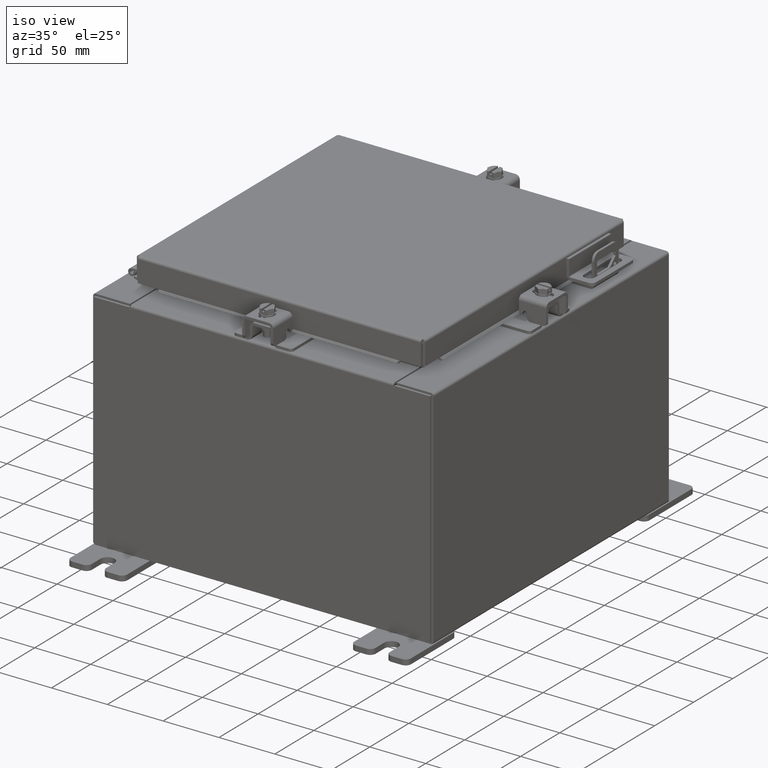
[diagram: clean part render]
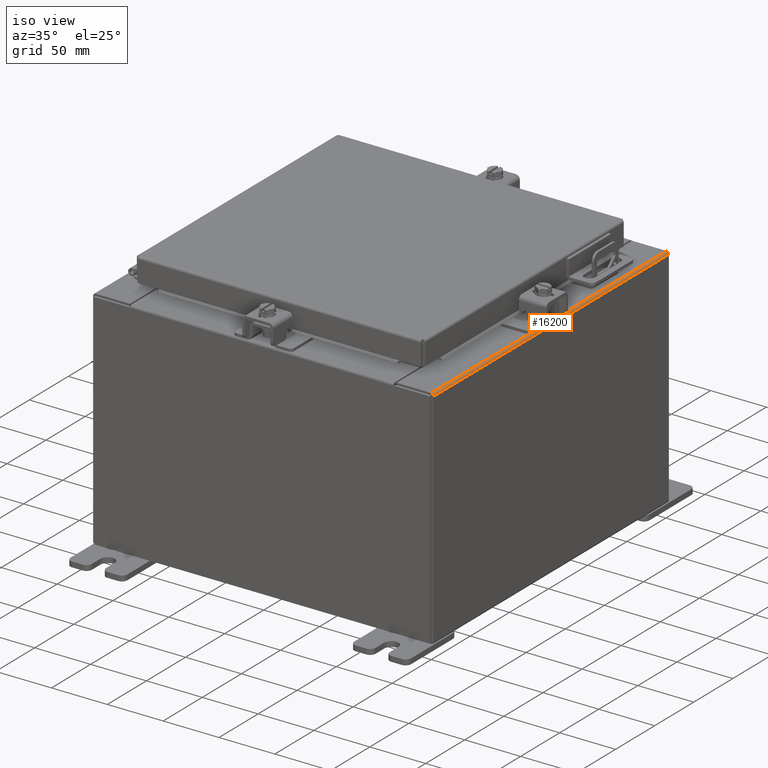
[diagram: same view with one face highlighted and labeled with its STEP entity id]
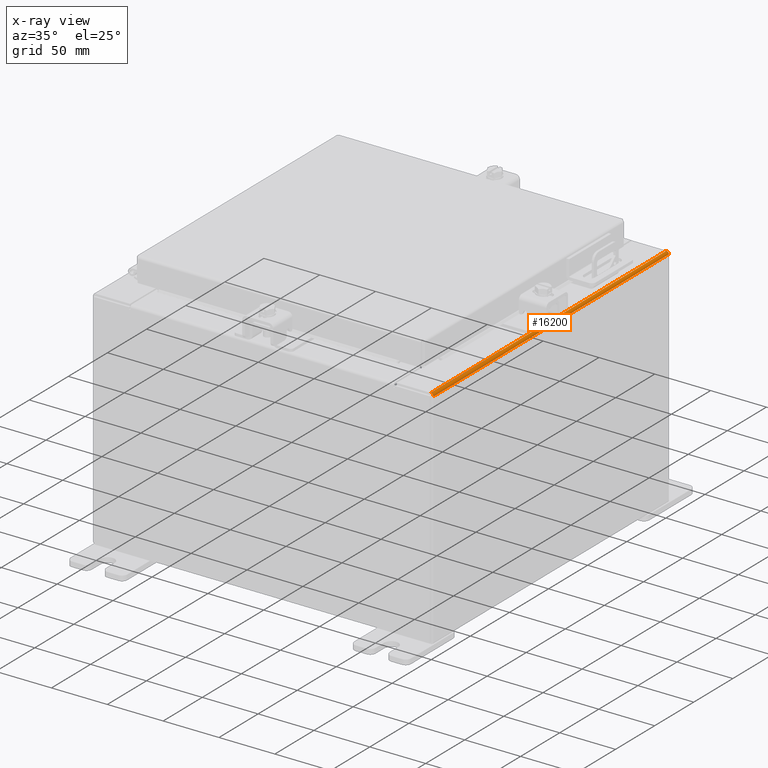
[diagram: x-ray of the same camera — body ghosted, the highlighted face saturated]
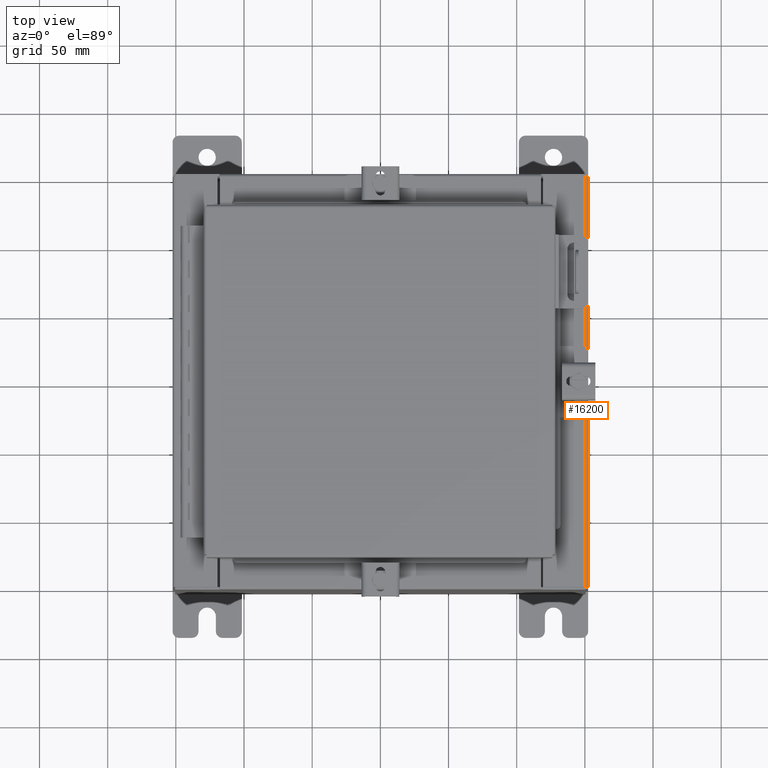
[diagram: same view with one face highlighted and labeled with its STEP entity id]
A machine part, iso view. The second image highlights one B-rep face of the part: STEP entity #16200.
The next image is the same camera in x-ray: the body ghosted, the highlighted face saturated — about 0% of this face is hidden behind the body in this view.
A second angle (top view) of the same face is appended — the face is thin or edge-on in the first view.
In plain terms, the highlighted cylindrical surface (edge-blend (fillet) strip) has radius 2.2276 mm, axis along (0, 1, 0).
Its self-contained STEP definition (entity closure, byte-faithful):
#100 = CARTESIAN_POINT ( 'NONE',  ( 6.000000000000030200, 5.925299999999998200, 7.837599999999992100 ) ) ;
#461 = LINE ( 'NONE', #1799, #8928 ) ;
#583 = VERTEX_POINT ( 'NONE', #8913 ) ;
#968 = CARTESIAN_POINT ( 'NONE',  ( 5.912300000000028500, 5.925299999999997300, 7.837599999999999200 ) ) ;
#1190 = VECTOR ( 'NONE', #10932, 39.37007874015748100 ) ;
#1799 = CARTESIAN_POINT ( 'NONE',  ( 5.912300000000028500, -5.925300000000000000, 7.925300000000000900 ) ) ;
#2195 = ORIENTED_EDGE ( 'NONE', *, *, #16218, .F. ) ;
#2599 = EDGE_LOOP ( 'NONE', ( #2195, #13933, #9022, #4847 ) ) ;
#2776 = DIRECTION ( 'NONE',  ( 0.0000000000000000000, 0.0000000000000000000, 1.000000000000000000 ) ) ;
#4842 = CYLINDRICAL_SURFACE ( 'NONE', #20785, 0.08770000000000136000 ) ;
#4847 = ORIENTED_EDGE ( 'NONE', *, *, #13123, .F. ) ;
#5469 = DIRECTION ( 'NONE',  ( 0.0000000000000000000, 1.000000000000000000, 0.0000000000000000000 ) ) ;
#6861 = EDGE_CURVE ( 'NONE', #15077, #23188, #20383, .T. ) ;
#7223 = DIRECTION ( 'NONE',  ( 1.245996804407854400E-014, 0.0000000000000000000, 1.000000000000000000 ) ) ;
#7805 = CARTESIAN_POINT ( 'NONE',  ( 5.912300000000028500, 5.925299999999997300, 7.925300000000000000 ) ) ;
#8913 = CARTESIAN_POINT ( 'NONE',  ( 5.912300000000028500, -5.925300000000000000, 7.925300000000000900 ) ) ;
#8928 = VECTOR ( 'NONE', #18079, 39.37007874015748100 ) ;
#9022 = ORIENTED_EDGE ( 'NONE', *, *, #13249, .T. ) ;
#9905 = VERTEX_POINT ( 'NONE', #20955 ) ;
#10492 = CARTESIAN_POINT ( 'NONE',  ( 5.912300000000028500, -5.925300000000000000, 7.837599999999999200 ) ) ;
#10932 = DIRECTION ( 'NONE',  ( -0.0000000000000000000, -1.000000000000000000, -0.0000000000000000000 ) ) ;
#12323 = DIRECTION ( 'NONE',  ( 0.0000000000000000000, 0.0000000000000000000, 1.000000000000000000 ) ) ;
#13123 = EDGE_CURVE ( 'NONE', #9905, #583, #21374, .T. ) ;
#13249 = EDGE_CURVE ( 'NONE', #15077, #583, #461, .T. ) ;
#13633 = DIRECTION ( 'NONE',  ( 0.0000000000000000000, 1.000000000000000000, 0.0000000000000000000 ) ) ;
#13933 = ORIENTED_EDGE ( 'NONE', *, *, #6861, .F. ) ;
#14485 = LINE ( 'NONE', #100, #1190 ) ;
#15077 = VERTEX_POINT ( 'NONE', #7805 ) ;
#15299 = CARTESIAN_POINT ( 'NONE',  ( 6.000000000000030200, 5.925299999999997300, 7.837599999999992100 ) ) ;
#16200 = ADVANCED_FACE ( 'NONE', ( #19288 ), #4842, .T. ) ;
#16218 = EDGE_CURVE ( 'NONE', #23188, #9905, #14485, .T. ) ;
#18079 = DIRECTION ( 'NONE',  ( -0.0000000000000000000, -1.000000000000000000, 9.220960942616455200E-017 ) ) ;
#18133 = CARTESIAN_POINT ( 'NONE',  ( 5.912300000000028500, 5.925299999999998200, 7.837599999999999200 ) ) ;
#19288 = FACE_OUTER_BOUND ( 'NONE', #2599, .T. ) ;
#20383 = CIRCLE ( 'NONE', #21292, 0.08770000000000136000 ) ;
#20785 = AXIS2_PLACEMENT_3D ( 'NONE', #18133, #5469, #7223 ) ;
#20955 = CARTESIAN_POINT ( 'NONE',  ( 6.000000000000029300, -5.925300000000000000, 7.837599999999998300 ) ) ;
#21292 = AXIS2_PLACEMENT_3D ( 'NONE', #968, #13633, #2776 ) ;
#21374 = CIRCLE ( 'NONE', #22523, 0.08770000000000136000 ) ;
#22523 = AXIS2_PLACEMENT_3D ( 'NONE', #10492, #23114, #12323 ) ;
#23114 = DIRECTION ( 'NONE',  ( -0.0000000000000000000, -1.000000000000000000, -0.0000000000000000000 ) ) ;
#23188 = VERTEX_POINT ( 'NONE', #15299 ) ;